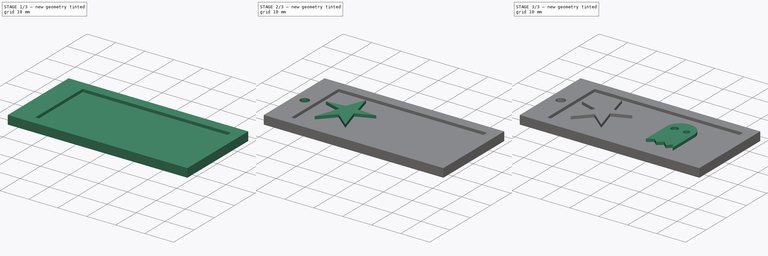
[diagram: build sequence overview — one tinted view per stage of 3, left to right]
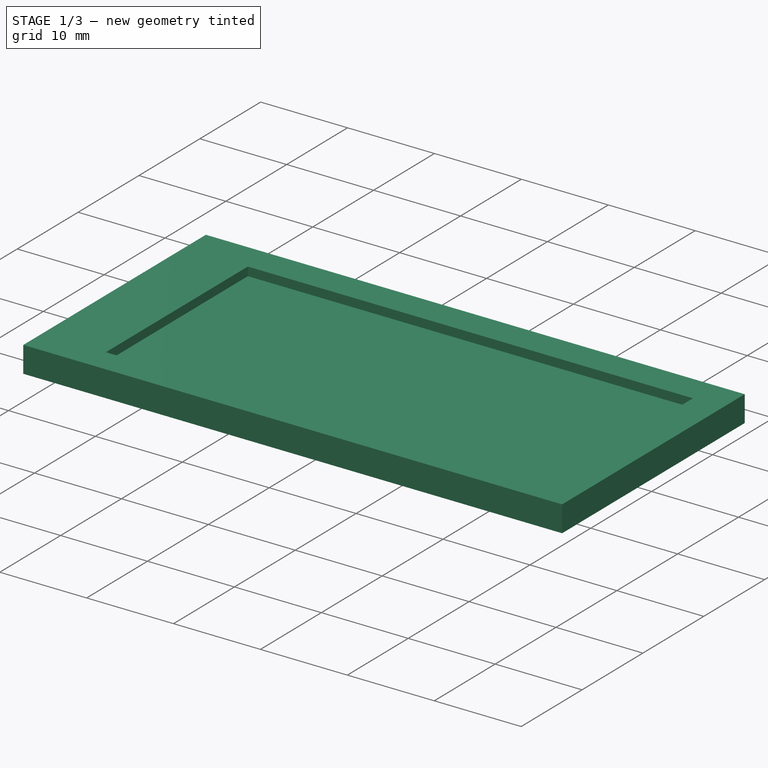
[diagram: stage 1 of 3 — iso view after this stage's code; geometry added in this stage tinted green]
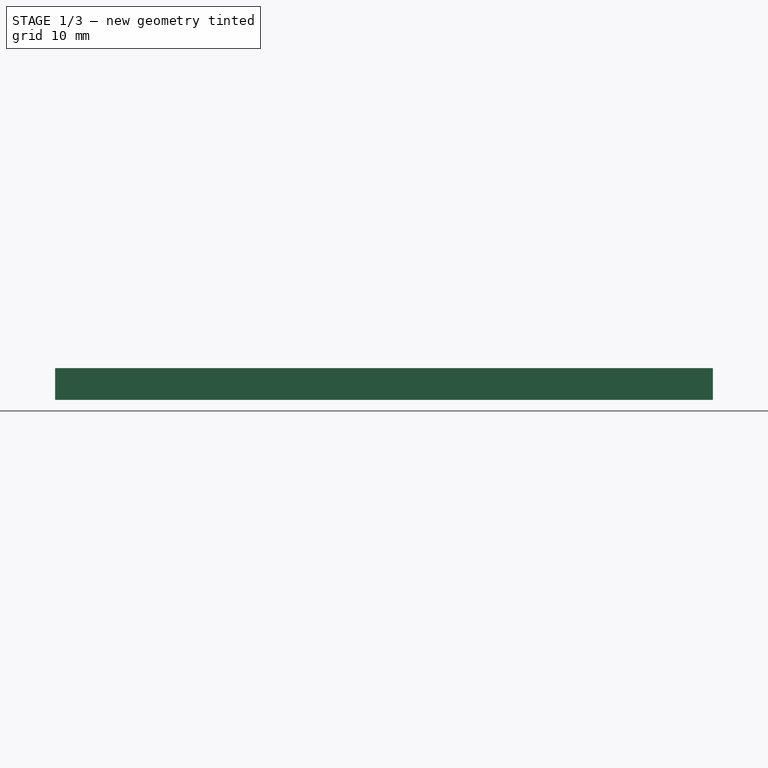
[diagram: stage 1 of 3 — front view after this stage's code; geometry added in this stage tinted green]
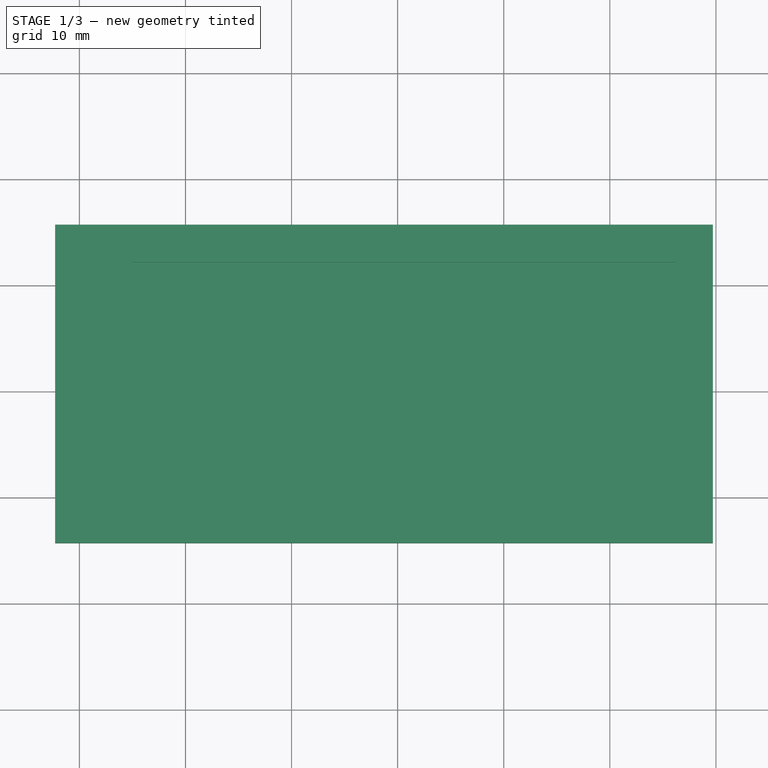
[diagram: stage 1 of 3 — top view after this stage's code; geometry added in this stage tinted green]
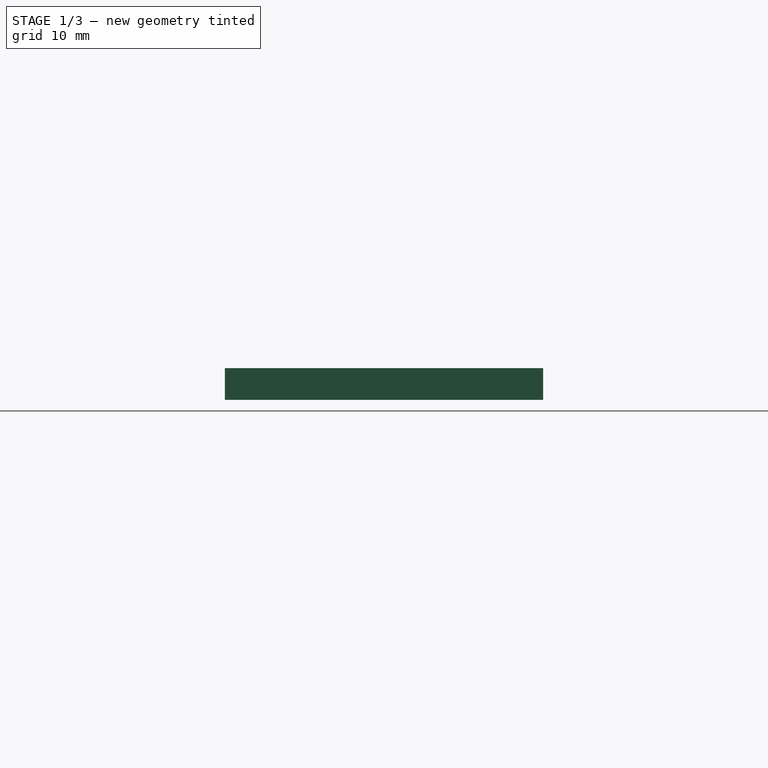
[diagram: stage 1 of 3 — right view after this stage's code; geometry added in this stage tinted green]
FCSTD DOCUMENT  (FreeCAD 0.16R6703 (Git))
Label: test
License: All rights reserved
LicenseURL: http://en.wikipedia.org/wiki/All_rights_reserved
objects: Sketcher::SketchObject×6, PartDesign::Pad×3, PartDesign::Pocket×3
note: 18 computed .brp shape members not serialized (recipe doc carries the construction recipe); baked Part::Feature solids carry a one-line shape summary decoded from their .brp

FEATURE [Sketcher::SketchObject] Sketch
  sketch-geometry (4):
    g0: LineSegment StartX=-32.2866 StartY=15.7045 StartZ=0 EndX=29.7134 EndY=15.7045 EndZ=0
    g1: LineSegment StartX=29.7134 StartY=15.7045 StartZ=0 EndX=29.7134 EndY=-14.2955 EndZ=0
    g2: LineSegment StartX=29.7134 StartY=-14.2955 StartZ=0 EndX=-32.2866 EndY=-14.2955 EndZ=0
    g3: LineSegment StartX=-32.2866 StartY=-14.2955 StartZ=0 EndX=-32.2866 EndY=15.7045 EndZ=0
  constraints (10):
    c: Coincident(g0,g1)
    c: Coincident(g1,g2)
    c: Coincident(g2,g3)
    c: Coincident(g3,g0)
    c: Horizontal(g0)
    c: Horizontal(g2)
    c: Vertical(g1)
    c: Vertical(g3)
    c: DistanceX(g0,g0) = 62
    c: DistanceY(g1,g1) = 30
FEATURE [PartDesign::Pad] Pad
  Length = 3
  Length2 = 100
  Sketch = -> Sketch
  Type = 0
FEATURE [Sketcher::SketchObject] Sketch001
  Placement = pos=(0,0,3) rot=(0,0,1;0rad)
  Support = -> Pad [Face6]
  sketch-geometry (4):
    g0: LineSegment StartX=-24.979 StartY=12.1625 StartZ=0 EndX=26.2436 EndY=12.1625 EndZ=0
    g1: LineSegment StartX=26.2436 StartY=12.1625 StartZ=0 EndX=26.2436 EndY=-11.1526 EndZ=0
    g2: LineSegment StartX=26.2436 StartY=-11.1526 StartZ=0 EndX=-24.979 EndY=-11.1526 EndZ=0
    g3: LineSegment StartX=-24.979 StartY=-11.1526 StartZ=0 EndX=-24.979 EndY=12.1625 EndZ=0
  constraints (8):
    c: Coincident(g0,g1)
    c: Coincident(g1,g2)
    c: Coincident(g2,g3)
    c: Coincident(g3,g0)
    c: Horizontal(g0)
    c: Horizontal(g2)
    c: Vertical(g1)
    c: Vertical(g3)
FEATURE [PartDesign::Pocket] Pocket
  Length = 1
  Sketch = -> Sketch001
  Type = 0
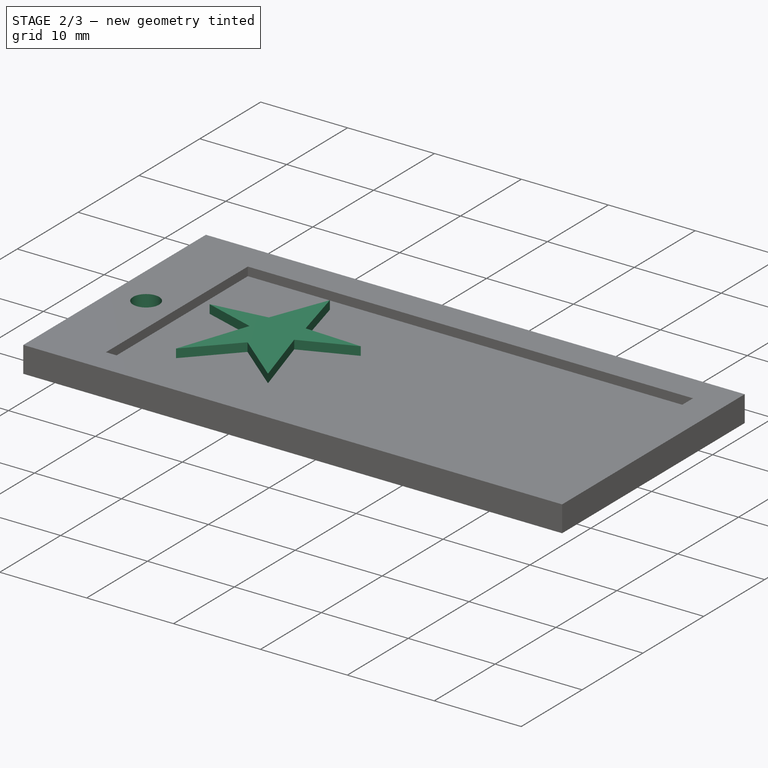
[diagram: stage 2 of 3 — iso view after this stage's code; geometry added in this stage tinted green]
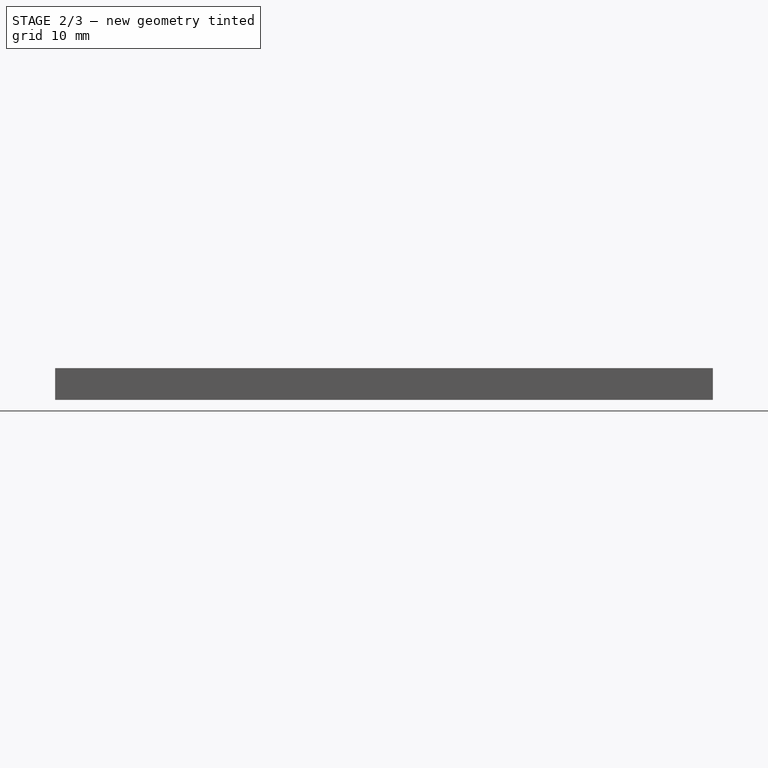
[diagram: stage 2 of 3 — front view after this stage's code; geometry added in this stage tinted green]
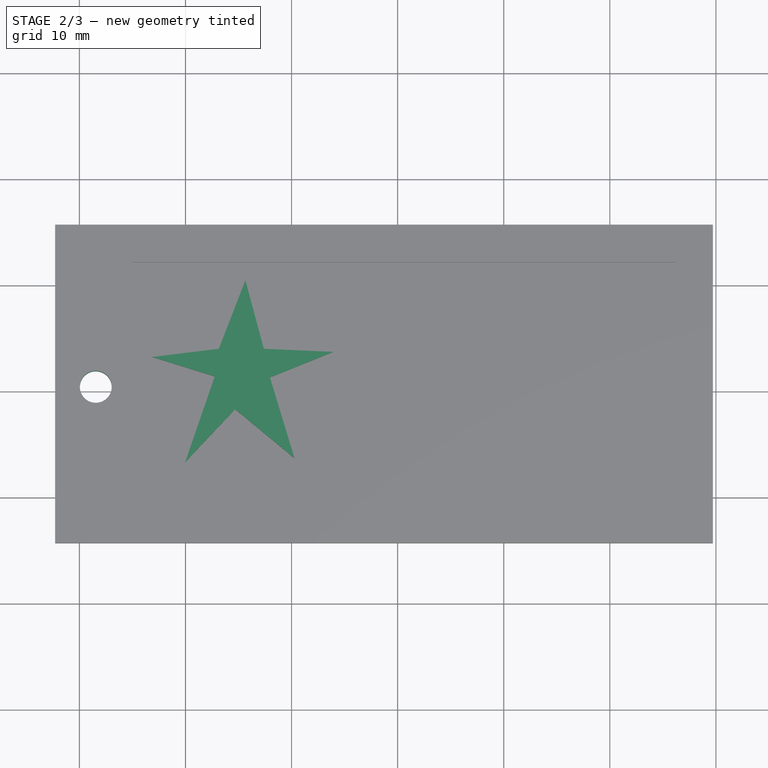
[diagram: stage 2 of 3 — top view after this stage's code; geometry added in this stage tinted green]
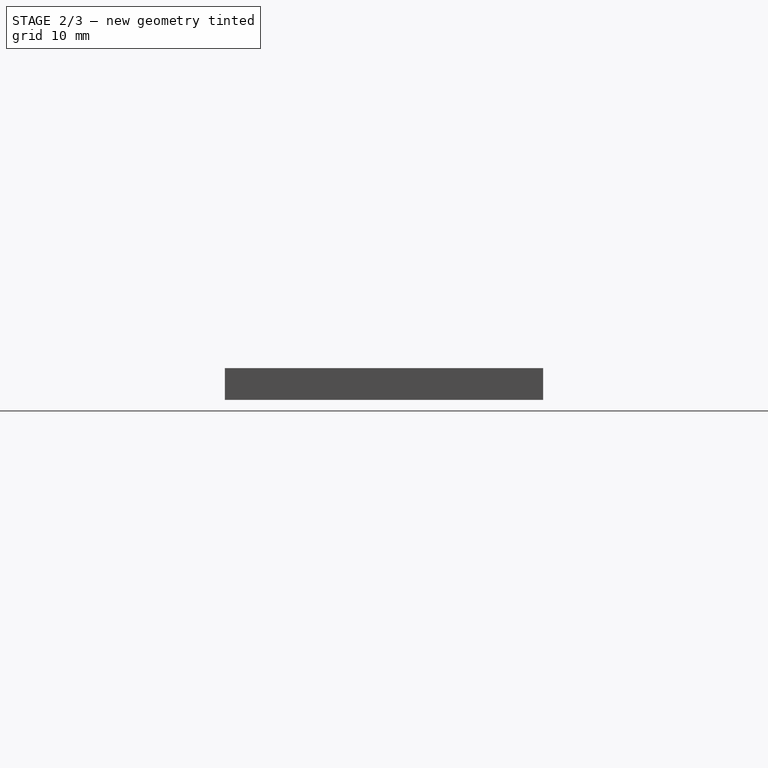
[diagram: stage 2 of 3 — right view after this stage's code; geometry added in this stage tinted green]
FEATURE [Sketcher::SketchObject] Sketch002
  Placement = pos=(0,0,3) rot=(0,0,1;0rad)
  Support = -> Pocket [Face5]
  sketch-geometry (1):
    g0: Circle CenterX=-28.4538 CenterY=0.41293 CenterZ=0 NormalX=0 NormalY=0 NormalZ=1 Radius=1.5
  constraints (1):
    c: Radius(g0) = 1.5
FEATURE [PartDesign::Pocket] Pocket001
  Length = 5
  Sketch = -> Sketch002
  Type = 1
FEATURE [Sketcher::SketchObject] Sketch003
  Placement = pos=(0,0,2) rot=(0,0,1;0rad)
  Support = -> Pocket001 [Face12]
  sketch-geometry (10):
    g0: LineSegment StartX=-16.8565 StartY=3.99872 StartZ=0 EndX=-14.3499 EndY=10.4581 EndZ=0
    g1: LineSegment StartX=-14.3499 StartY=10.4581 StartZ=0 EndX=-12.6145 EndY=3.99872 EndZ=0
    g2: LineSegment StartX=-12.6145 StartY=3.99872 StartZ=0 EndX=-6.05878 EndY=3.70949 EndZ=0
    g3: LineSegment StartX=-6.05878 StartY=3.70949 StartZ=0 EndX=-12.0361 EndY=1.29929 EndZ=0
    g4: LineSegment StartX=-12.0361 StartY=1.29929 StartZ=0 EndX=-9.7223 EndY=-6.31696 EndZ=0
    g5: LineSegment StartX=-9.7223 StartY=-6.31696 StartZ=0 EndX=-15.314 EndY=-1.68936 EndZ=0
    g6: LineSegment StartX=-15.314 StartY=-1.68936 StartZ=0 EndX=-20.038 EndY=-6.70259 EndZ=0
    g7: LineSegment StartX=-20.038 StartY=-6.70259 StartZ=0 EndX=-17.2421 EndY=1.3957 EndZ=0
    g8: LineSegment StartX=-17.2421 StartY=1.3957 StartZ=0 EndX=-23.123 EndY=3.22745 EndZ=0
    g9: LineSegment StartX=-23.123 StartY=3.22745 StartZ=0 EndX=-16.8565 EndY=3.99872 EndZ=0
  constraints (10):
    c: Coincident(g0,g1)
    c: Coincident(g1,g2)
    c: Coincident(g2,g3)
    c: Coincident(g3,g4)
    c: Coincident(g4,g5)
    c: Coincident(g5,g6)
    c: Coincident(g6,g7)
    c: Coincident(g7,g8)
    c: Coincident(g8,g9)
    c: Coincident(g9,g0)
FEATURE [PartDesign::Pad] Pad001
  Length = 1
  Length2 = 100
  Sketch = -> Sketch003
  Type = 0
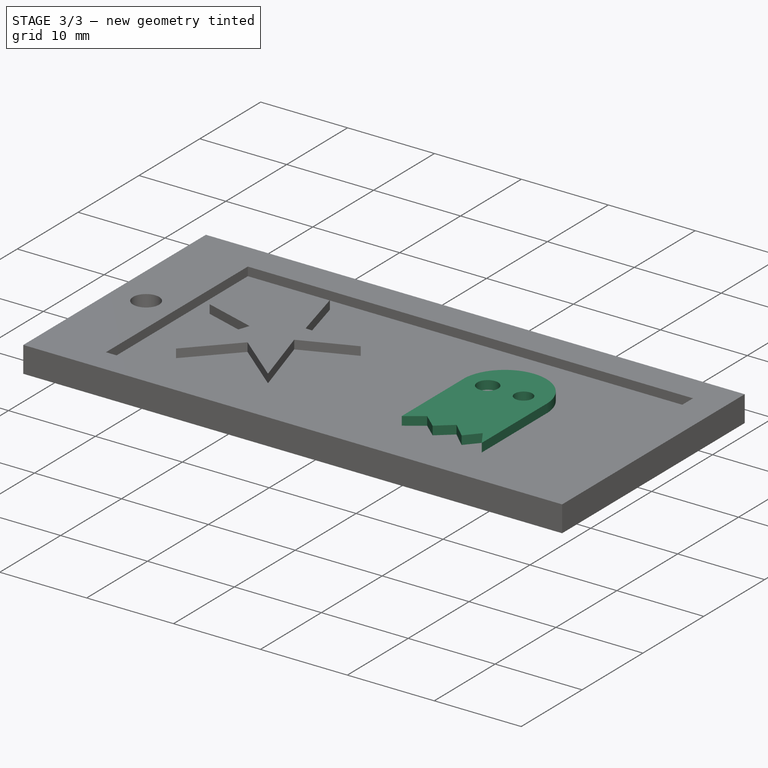
[diagram: stage 3 of 3 — iso view after this stage's code; geometry added in this stage tinted green]
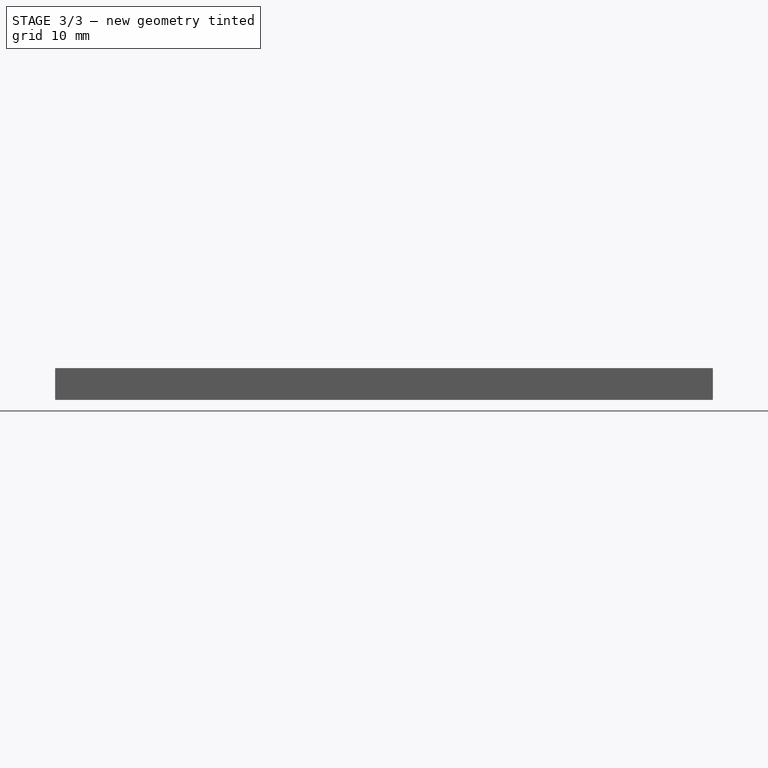
[diagram: stage 3 of 3 — front view after this stage's code; geometry added in this stage tinted green]
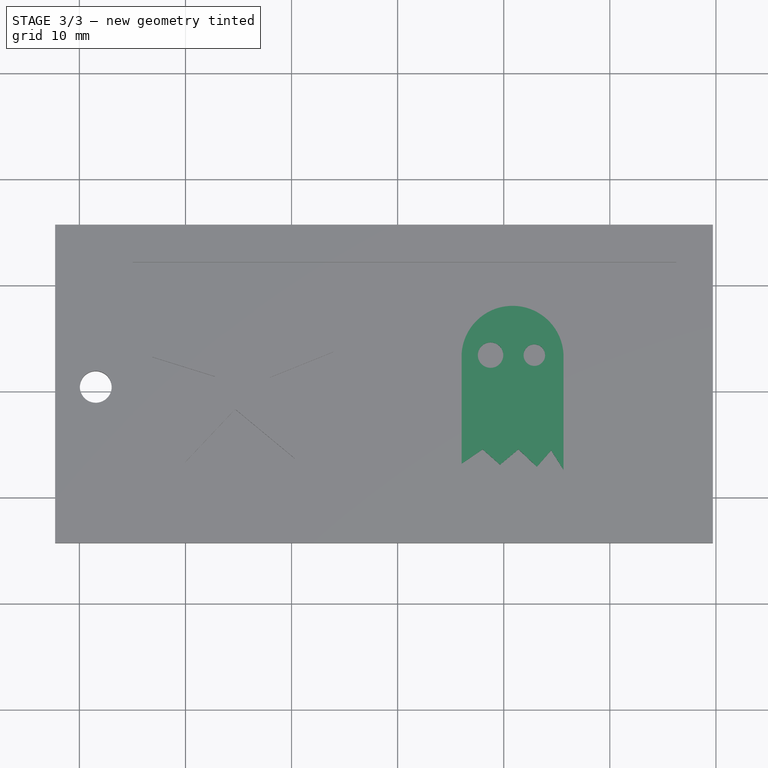
[diagram: stage 3 of 3 — top view after this stage's code; geometry added in this stage tinted green]
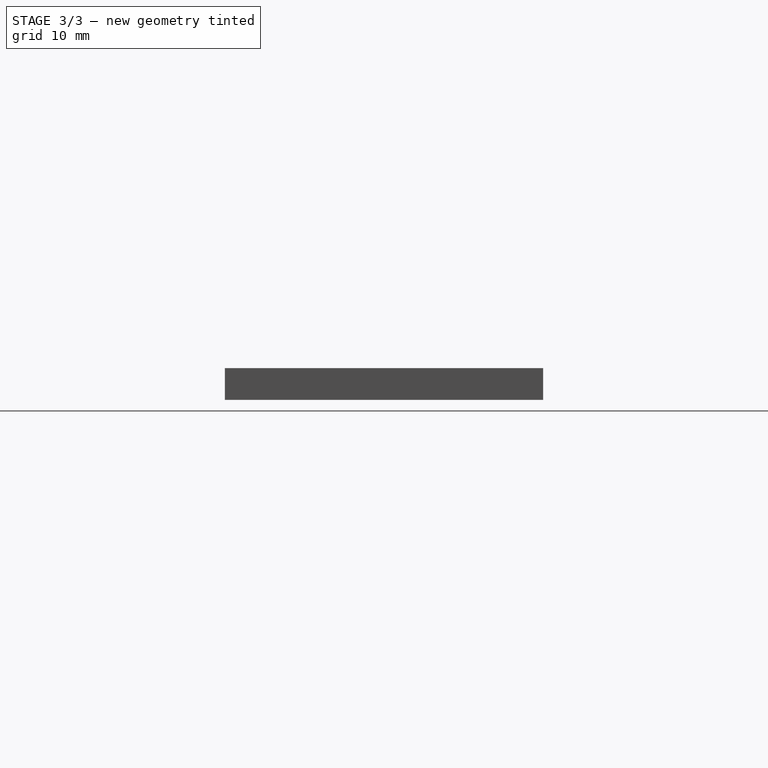
[diagram: stage 3 of 3 — right view after this stage's code; geometry added in this stage tinted green]
FEATURE [Sketcher::SketchObject] Sketch004
  Placement = pos=(0,0,2) rot=(0,0,1;0rad)
  Support = -> Pad001 [Face12]
  sketch-geometry (10):
    g0: LineSegment StartX=6.03325 StartY=3.5701 StartZ=0 EndX=6.03325 EndY=-6.82603 EndZ=0
    g1: LineSegment StartX=6.03325 StartY=-6.82603 StartZ=0 EndX=8.01023 EndY=-5.47631 EndZ=0
    g2: LineSegment StartX=8.01023 StartY=-5.47631 StartZ=0 EndX=9.64917 EndY=-6.92244 EndZ=0
    g3: LineSegment StartX=9.64917 StartY=-6.92244 StartZ=0 EndX=11.3845 EndY=-5.47631 EndZ=0
    g4: LineSegment StartX=11.3845 StartY=-5.47631 StartZ=0 EndX=13.1199 EndY=-7.11525 EndZ=0
    g5: LineSegment StartX=13.1199 StartY=-7.11525 StartZ=0 EndX=14.4696 EndY=-5.57272 EndZ=0
    g6: LineSegment StartX=14.4696 StartY=-5.57272 StartZ=0 EndX=15.6361 EndY=-7.40448 EndZ=0
    g7: LineSegment StartX=15.6361 StartY=-7.40448 StartZ=0 EndX=15.6361 EndY=3.37568 EndZ=0
    g8: ArcOfCircle CenterX=10.8299 CenterY=3.23912 CenterZ=0 NormalX=0 NormalY=0 NormalZ=1 Radius=4.80808 StartAngle=0.0284054 EndAngle=3.0727
    g9: GeomPoint [constr] X=30.7626 Y=40.1248 Z=0
  constraints (11):
    c: Vertical(g0)
    c: Coincident(g0,g1)
    c: Coincident(g1,g2)
    c: Coincident(g2,g3)
    c: Coincident(g3,g4)
    c: Coincident(g4,g5)
    c: Coincident(g5,g6)
    c: Coincident(g6,g7)
    c: Vertical(g7)
    c: Coincident(g8,g0)
    c: Coincident(g8,g7)
FEATURE [PartDesign::Pad] Pad002
  Length = 1
  Length2 = 100
  Sketch = -> Sketch004
  Type = 0
FEATURE [Sketcher::SketchObject] Sketch005
  Placement = pos=(0,0,3) rot=(0,0,1;0rad)
  Support = -> Pad002 [Face32]
  sketch-geometry (2):
    g0: Circle CenterX=8.75597 CenterY=3.40339 CenterZ=0 NormalX=0 NormalY=0 NormalZ=1 Radius=1.19955
    g1: Circle CenterX=12.8829 CenterY=3.40339 CenterZ=0 NormalX=0 NormalY=0 NormalZ=1 Radius=1.01637
FEATURE [PartDesign::Pocket] Pocket002
  Length = 1
  Sketch = -> Sketch005
  Type = 0
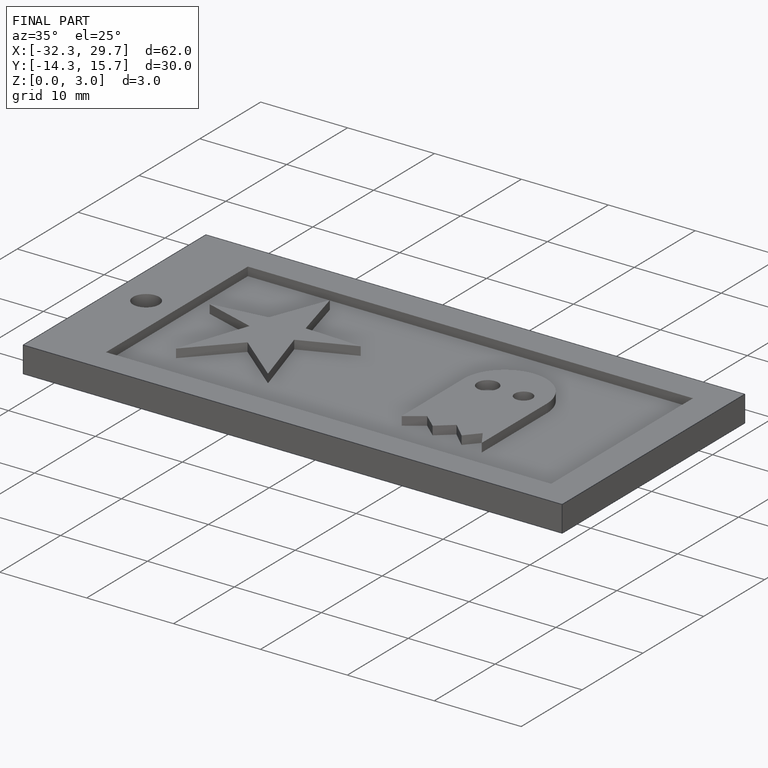
[diagram: finished part — iso view with bounding-box wireframe]
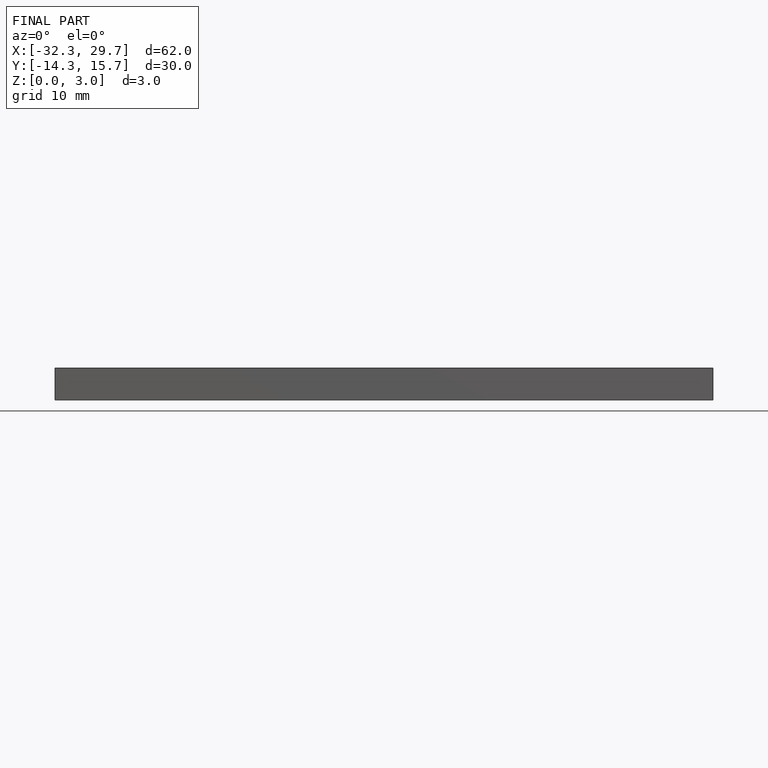
[diagram: finished part — front view with bounding-box wireframe]
